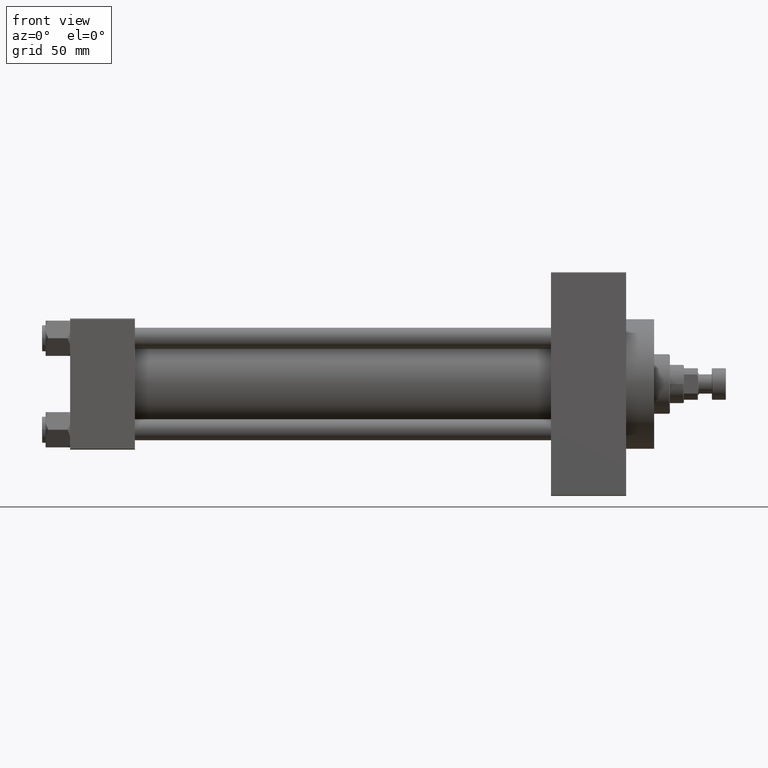
[diagram: clean part render]
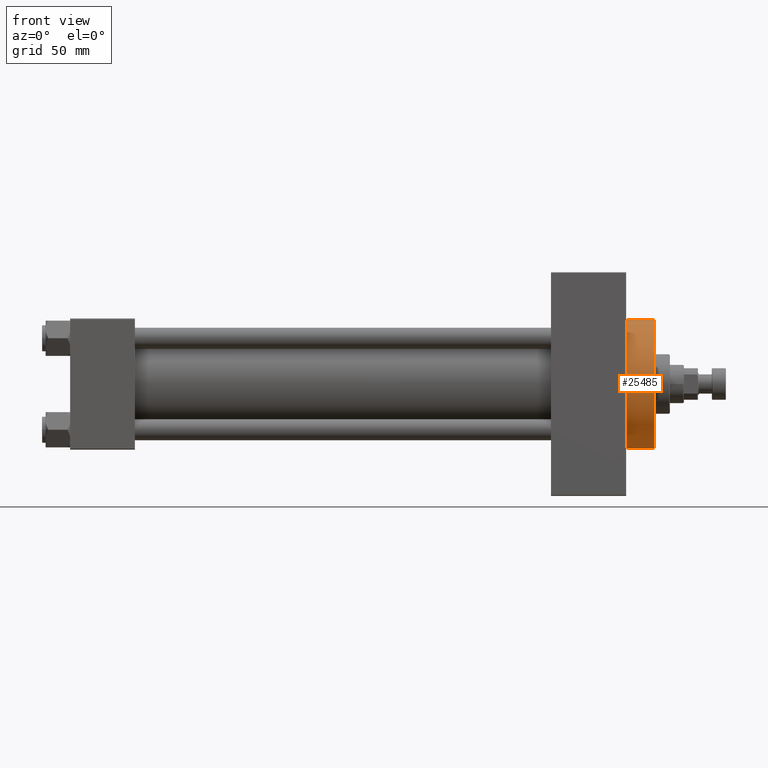
[diagram: same view with one face highlighted and labeled with its STEP entity id]
A machine part, front view. The second image highlights one B-rep face of the part: STEP entity #25485.
In plain terms, the highlighted cylindrical surface (partial cylindrical patch) has radius 37 mm, axis along (-1, -0, -0).
Its self-contained STEP definition (entity closure, byte-faithful):
#305 = CARTESIAN_POINT ( 'NONE',  ( 317.9999999999999432, 0.000000000000000000, 0.000000000000000000 ) ) ;
#1481 = DIRECTION ( 'NONE',  ( 1.000000000000000000, 0.000000000000000000, 0.000000000000000000 ) ) ;
#7914 = CIRCLE ( 'NONE', #34870, 37.00000000000000000 ) ;
#9640 = CARTESIAN_POINT ( 'NONE',  ( 333.9999999999999432, 4.531193156845206793E-15, -37.00000000000000000 ) ) ;
#10521 = EDGE_LOOP ( 'NONE', ( #21814, #43306, #16144, #37962 ) ) ;
#10672 = VECTOR ( 'NONE', #16433, 1000.000000000000000 ) ;
#10755 = VERTEX_POINT ( 'NONE', #44945 ) ;
#11045 = EDGE_CURVE ( 'NONE', #29182, #19656, #27635, .T. ) ;
#12728 = EDGE_CURVE ( 'NONE', #19656, #41089, #16913, .T. ) ;
#14080 = CARTESIAN_POINT ( 'NONE',  ( 317.9999999999999432, 4.531193156845206793E-15, -37.00000000000000000 ) ) ;
#14744 = CARTESIAN_POINT ( 'NONE',  ( 333.9999999999999432, 4.531193156845206793E-15, -37.00000000000000000 ) ) ;
#16144 = ORIENTED_EDGE ( 'NONE', *, *, #36954, .T. ) ;
#16433 = DIRECTION ( 'NONE',  ( -1.000000000000000000, -0.000000000000000000, -0.000000000000000000 ) ) ;
#16913 = LINE ( 'NONE', #9640, #10672 ) ;
#19270 = DIRECTION ( 'NONE',  ( -1.000000000000000000, -0.000000000000000000, -0.000000000000000000 ) ) ;
#19656 = VERTEX_POINT ( 'NONE', #14744 ) ;
#21226 = DIRECTION ( 'NONE',  ( 0.000000000000000000, 0.000000000000000000, 1.000000000000000000 ) ) ;
#21814 = ORIENTED_EDGE ( 'NONE', *, *, #12728, .F. ) ;
#24217 = EDGE_CURVE ( 'NONE', #10755, #41089, #7914, .T. ) ;
#24446 = CARTESIAN_POINT ( 'NONE',  ( 333.9999999999999432, 0.000000000000000000, 0.000000000000000000 ) ) ;
#25070 = FACE_OUTER_BOUND ( 'NONE', #10521, .T. ) ;
#25485 = ADVANCED_FACE ( 'NONE', ( #25070 ), #42910, .T. ) ;
#27635 = CIRCLE ( 'NONE', #29181, 37.00000000000000000 ) ;
#29181 = AXIS2_PLACEMENT_3D ( 'NONE', #24446, #43478, #46612 ) ;
#29182 = VERTEX_POINT ( 'NONE', #34604 ) ;
#31238 = VECTOR ( 'NONE', #19270, 1000.000000000000000 ) ;
#34604 = CARTESIAN_POINT ( 'NONE',  ( 333.9999999999999432, 0.000000000000000000, 37.00000000000000000 ) ) ;
#34870 = AXIS2_PLACEMENT_3D ( 'NONE', #305, #1481, #42237 ) ;
#36385 = AXIS2_PLACEMENT_3D ( 'NONE', #46760, #39298, #21226 ) ;
#36954 = EDGE_CURVE ( 'NONE', #29182, #10755, #41432, .T. ) ;
#37114 = CARTESIAN_POINT ( 'NONE',  ( 333.9999999999999432, 0.000000000000000000, 37.00000000000000000 ) ) ;
#37962 = ORIENTED_EDGE ( 'NONE', *, *, #24217, .T. ) ;
#39298 = DIRECTION ( 'NONE',  ( -1.000000000000000000, -0.000000000000000000, -0.000000000000000000 ) ) ;
#41089 = VERTEX_POINT ( 'NONE', #14080 ) ;
#41432 = LINE ( 'NONE', #37114, #31238 ) ;
#42237 = DIRECTION ( 'NONE',  ( 0.000000000000000000, 0.000000000000000000, -1.000000000000000000 ) ) ;
#42910 = CYLINDRICAL_SURFACE ( 'NONE', #36385, 37.00000000000000000 ) ;
#43306 = ORIENTED_EDGE ( 'NONE', *, *, #11045, .F. ) ;
#43478 = DIRECTION ( 'NONE',  ( 1.000000000000000000, 0.000000000000000000, 0.000000000000000000 ) ) ;
#44945 = CARTESIAN_POINT ( 'NONE',  ( 317.9999999999999432, 0.000000000000000000, 37.00000000000000000 ) ) ;
#46612 = DIRECTION ( 'NONE',  ( 0.000000000000000000, 0.000000000000000000, -1.000000000000000000 ) ) ;
#46760 = CARTESIAN_POINT ( 'NONE',  ( 333.9999999999999432, 0.000000000000000000, 0.000000000000000000 ) ) ;